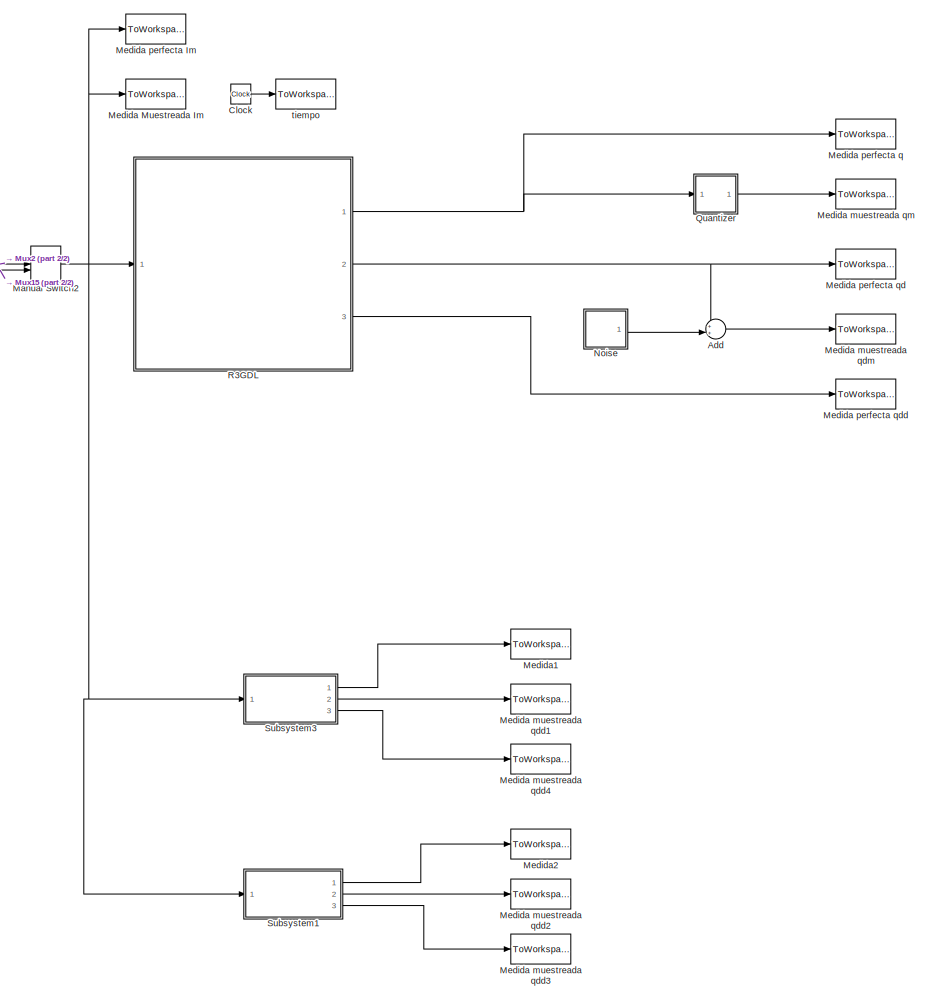
[diagram: root canvas - part 1/2, right side, full height]
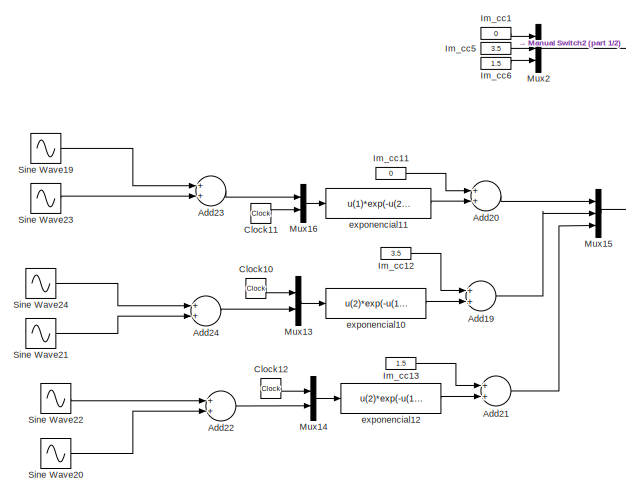
[diagram: root canvas - part 2/2, top left region]
MODEL slx_bdbe57c307d7
KIND model
CONFIG AbsTol = auto
CONFIG EnableMultiTasking = off
CONFIG FixedStep = 0.001
CONFIG MaxStep = auto
CONFIG MinStep = auto
CONFIG RelTol = 1e-3
CONFIG SampleTimeConstraint = Unconstrained
CONFIG Solver = VariableStepAuto
CONFIG SolverName = VariableStepAuto
CONFIG StartTime = 0.0
CONFIG StopTime = fin
BLOCK [Sum] Add
  IconShape = round
  InputSameDT = off
  Inputs = ++|
  OutDataTypeStr = Inherit: Inherit via internal rule
  Ports = [2, 1]
  SaturateOnIntegerOverflow = off
BLOCK [Sum] Add19
  InputSameDT = off
  OutDataTypeStr = Inherit: Inherit via internal rule
  Ports = [2, 1]
  SaturateOnIntegerOverflow = off
BLOCK [Sum] Add20
  InputSameDT = off
  OutDataTypeStr = Inherit: Inherit via internal rule
  Ports = [2, 1]
  SaturateOnIntegerOverflow = off
BLOCK [Sum] Add21
  InputSameDT = off
  OutDataTypeStr = Inherit: Inherit via internal rule
  Ports = [2, 1]
  SaturateOnIntegerOverflow = off
BLOCK [Sum] Add22
  InputSameDT = off
  OutDataTypeStr = Inherit: Inherit via internal rule
  Ports = [2, 1]
  SaturateOnIntegerOverflow = off
BLOCK [Sum] Add23
  InputSameDT = off
  OutDataTypeStr = Inherit: Inherit via internal rule
  Ports = [2, 1]
  SaturateOnIntegerOverflow = off
BLOCK [Sum] Add24
  InputSameDT = off
  OutDataTypeStr = Inherit: Inherit via internal rule
  Ports = [2, 1]
  SaturateOnIntegerOverflow = off
BLOCK [Clock] Clock
BLOCK [Clock] Clock10
BLOCK [Clock] Clock11
BLOCK [Clock] Clock12
BLOCK [Constant] Im_cc1
  Value = 0
BLOCK [Constant] Im_cc11
  Value = 0
BLOCK [Constant] Im_cc12
  Value = 3.5
BLOCK [Constant] Im_cc13
  Value = 1.5
BLOCK [Constant] Im_cc5
  Value = 3.5
BLOCK [Constant] Im_cc6
  Value = 1.5
BLOCK [ManualSwitch] Manual Switch2
  CurrentSetting = 0
BLOCK [ToWorkspace] Medida Muestreada Im
  FixptAsFi = on
  MaxDataPoints = inf
  Ports = [1]
  SampleTime = Ts
  Save2DSignal = 3-D array (concatenate along third dimension)
  VariableName = Ireal
BLOCK [ToWorkspace] Medida muestreada qdd1
  FixptAsFi = on
  MaxDataPoints = inf
  Ports = [1]
  SampleTime = Ts
  Save2DSignal = 3-D array (concatenate along third dimension)
  VariableName = qdi
BLOCK [ToWorkspace] Medida muestreada qdd2
  FixptAsFi = on
  MaxDataPoints = inf
  Ports = [1]
  SampleTime = Ts
  Save2DSignal = 3-D array (concatenate along third dimension)
  VariableName = qdr
BLOCK [ToWorkspace] Medida muestreada qdd3
  FixptAsFi = on
  MaxDataPoints = inf
  Ports = [1]
  SampleTime = Ts
  Save2DSignal = 3-D array (concatenate along third dimension)
  VariableName = qddr
BLOCK [ToWorkspace] Medida muestreada qdd4
  FixptAsFi = on
  MaxDataPoints = inf
  Ports = [1]
  SampleTime = Ts
  Save2DSignal = 3-D array (concatenate along third dimension)
  VariableName = qddi
BLOCK [ToWorkspace] Medida muestreada qdm
  FixptAsFi = on
  MaxDataPoints = inf
  Ports = [1]
  SampleTime = Ts
  Save2DSignal = 3-D array (concatenate along third dimension)
  VariableName = qdreal
BLOCK [ToWorkspace] Medida muestreada qm
  FixptAsFi = on
  MaxDataPoints = inf
  Ports = [1]
  SampleTime = Ts
  Save2DSignal = 3-D array (concatenate along third dimension)
  VariableName = qreal
BLOCK [ToWorkspace] Medida perfecta Im
  MaxDataPoints = inf
  Ports = [1]
  SampleTime = -1
  VariableName = Im
BLOCK [ToWorkspace] Medida perfecta q
  MaxDataPoints = inf
  Ports = [1]
  SampleTime = -1
  VariableName = q
BLOCK [ToWorkspace] Medida perfecta qd
  MaxDataPoints = inf
  Ports = [1]
  SampleTime = -1
  VariableName = qd
BLOCK [ToWorkspace] Medida perfecta qdd
  MaxDataPoints = inf
  Ports = [1]
  SampleTime = -1
  VariableName = qdd
BLOCK [ToWorkspace] Medida1
  FixptAsFi = on
  MaxDataPoints = inf
  Ports = [1]
  SampleTime = Ts
  Save2DSignal = 3-D array (concatenate along third dimension)
  VariableName = qi
BLOCK [ToWorkspace] Medida2
  FixptAsFi = on
  MaxDataPoints = inf
  Ports = [1]
  SampleTime = Ts
  Save2DSignal = 3-D array (concatenate along third dimension)
  VariableName = qr
BLOCK [Mux] Mux13
  DisplayOption = bar
  Inputs = 2
  Ports = [2, 1]
BLOCK [Mux] Mux14
  DisplayOption = bar
  Inputs = 2
  Ports = [2, 1]
BLOCK [Mux] Mux15
  DisplayOption = bar
  Inputs = 3
  Ports = [3, 1]
BLOCK [Mux] Mux16
  DisplayOption = bar
  Inputs = 2
  Ports = [2, 1]
BLOCK [Mux] Mux2
  DisplayOption = bar
  Inputs = 3
  Ports = [3, 1]
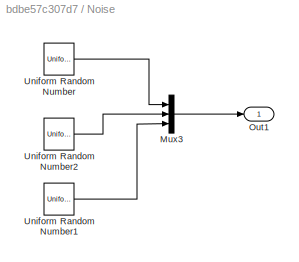
BLOCK [SubSystem] Noise 
  Ports = [0, 1]
  RequestExecContextInheritance = off
BLOCK [Mux] Noise /Mux3
  DisplayOption = bar
  Inputs = 3
  Ports = [3, 1]
BLOCK [Outport] Noise /Out1
  IconDisplay = Port number
BLOCK [UniformRandomNumber] Noise /Uniform Random Number
  Maximum = (1500*2*pi/60)*(noise/R1)
  Minimum = -(1500*2*pi/60)*(noise/R1)
  SampleTime = Ts*2
BLOCK [UniformRandomNumber] Noise /Uniform Random Number1
  Maximum = (1500*2*pi/60)*(noise/R3)
  Minimum = -(1500*2*pi/60)*(noise/R3)
  SampleTime = Ts*2
BLOCK [UniformRandomNumber] Noise /Uniform Random Number2
  Maximum = (1500*2*pi/60)*(noise/R2)
  Minimum = -(1500*2*pi/60)*(noise/R2)
  SampleTime = Ts*2
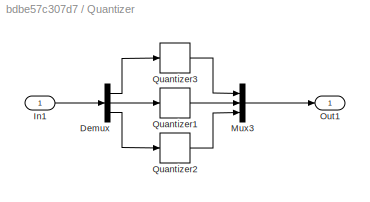
BLOCK [SubSystem] Quantizer 
  Ports = [1, 1]
  RequestExecContextInheritance = off
BLOCK [Demux] Quantizer /Demux
  DisplayOption = bar
  Outputs = 3
  Ports = [1, 3]
BLOCK [Inport] Quantizer /In1
  IconDisplay = Port number
BLOCK [Mux] Quantizer /Mux3
  DisplayOption = bar
  Inputs = 3
  Ports = [3, 1]
BLOCK [Outport] Quantizer /Out1
  IconDisplay = Port number
BLOCK [Quantizer] Quantizer /Quantizer1
  QuantizationInterval = 2*pi/1024/30
BLOCK [Quantizer] Quantizer /Quantizer2
  QuantizationInterval = 2*pi/1024/15
BLOCK [Quantizer] Quantizer /Quantizer3
  QuantizationInterval = 2*pi/1024/50
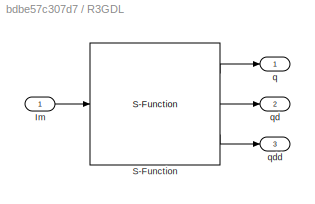
BLOCK [SubSystem] R3GDL
  Ports = [1, 3]
  RequestExecContextInheritance = off
BLOCK [Inport] R3GDL/Im
  IconDisplay = Port number
BLOCK [S-Function] R3GDL/S-Function
  EnableBusSupport = off
  FunctionName = R3GDL_RRR
  Parameters = [q1_ini; q2_ini; q3_ini]; [Bl_q1; Bl_q2; Bl_q3]; AccionamientoDirecto; NGrupo
  Ports = [1, 3]
  SFcnIsStateOwnerBlock = off
  SFunctionDeploymentMode = off
BLOCK [Outport] R3GDL/q
  IconDisplay = Port number
BLOCK [Outport] R3GDL/qd
  IconDisplay = Port number
  Port = 2
BLOCK [Outport] R3GDL/qdd
  IconDisplay = Port number
  Port = 3
BLOCK [Sin] Sine Wave19
  Amplitude = Aa1
  Frequency = wa1
  Ports = [0, 1]
  SampleTime = 0
BLOCK [Sin] Sine Wave20
  Amplitude = Ab3
  Frequency = wb3
  Ports = [0, 1]
  SampleTime = 0
BLOCK [Sin] Sine Wave21
  Amplitude = Ab2
  Frequency = wb2
  Ports = [0, 1]
  SampleTime = 0
BLOCK [Sin] Sine Wave22
  Amplitude = Aa3
  Frequency = wa3
  Ports = [0, 1]
  SampleTime = 0
BLOCK [Sin] Sine Wave23
  Amplitude = Ab1
  Frequency = wb1
  Ports = [0, 1]
  SampleTime = 0
BLOCK [Sin] Sine Wave24
  Amplitude = Aa2
  Frequency = wa2
  Ports = [0, 1]
  SampleTime = 0
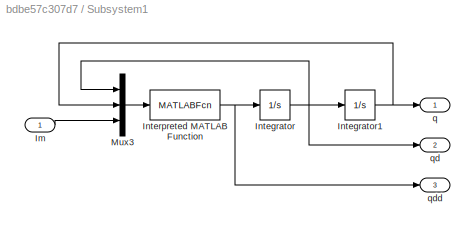
BLOCK [SubSystem] Subsystem1
  Ports = [1, 3]
  RequestExecContextInheritance = off
BLOCK [Inport] Subsystem1/Im
  IconDisplay = Port number
BLOCK [Integrator] Subsystem1/Integrator
  Ports = [1, 1]
BLOCK [Integrator] Subsystem1/Integrator1
  InitialCondition = [0 q2ini q3ini]
  Ports = [1, 1]
BLOCK [MATLABFcn] Subsystem1/Interpreted MATLAB Function
  MATLABFcn = modeloReal(u(1:6),u(7:9))
  OutputDimensions = 3
  Ports = [1, 1]
BLOCK [Mux] Subsystem1/Mux3
  DisplayOption = bar
  Inputs = 3
  Ports = [3, 1]
BLOCK [Outport] Subsystem1/q
  IconDisplay = Port number
BLOCK [Outport] Subsystem1/qd
  IconDisplay = Port number
  Port = 2
BLOCK [Outport] Subsystem1/qdd
  IconDisplay = Port number
  Port = 3
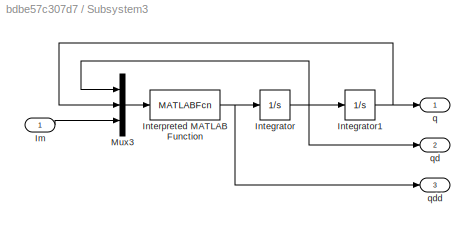
BLOCK [SubSystem] Subsystem3
  Ports = [1, 3]
  RequestExecContextInheritance = off
BLOCK [Inport] Subsystem3/Im
  IconDisplay = Port number
BLOCK [Integrator] Subsystem3/Integrator
  Ports = [1, 1]
BLOCK [Integrator] Subsystem3/Integrator1
  InitialCondition = [0 q2ini q3ini]
  Ports = [1, 1]
BLOCK [MATLABFcn] Subsystem3/Interpreted MATLAB Function
  MATLABFcn = modeloIdeal(u(1:6),u(7:9))
  OutputDimensions = 3
  Ports = [1, 1]
BLOCK [Mux] Subsystem3/Mux3
  DisplayOption = bar
  Inputs = 3
  Ports = [3, 1]
BLOCK [Outport] Subsystem3/q
  IconDisplay = Port number
BLOCK [Outport] Subsystem3/qd
  IconDisplay = Port number
  Port = 2
BLOCK [Outport] Subsystem3/qdd
  IconDisplay = Port number
  Port = 3
BLOCK [Fcn] exponencial10
  Expr = u(2)*exp(-u(1)/Tau2)
BLOCK [Fcn] exponencial11
  Expr = u(1)*exp(-u(2)/Tau1)
BLOCK [Fcn] exponencial12
  Expr = u(2)*exp(-u(1)/Tau3)
BLOCK [ToWorkspace] tiempo
  MaxDataPoints = inf
  Ports = [1]
  SampleTime = Ts
  VariableName = t
LINE Add19:1 -> Mux15:2
LINE Add20:1 -> Mux15:1
LINE Add21:1 -> Mux15:3
LINE Add22:1 -> Mux14:2
LINE Add23:1 -> Mux16:1
LINE Add24:1 -> Mux13:2
LINE Add:1 -> Medida muestreada qdm:1
LINE Clock10:1 -> Mux13:1
LINE Clock11:1 -> Mux16:2
LINE Clock12:1 -> Mux14:1
LINE Clock:1 -> tiempo:1
LINE Im_cc11:1 -> Add20:1
LINE Im_cc12:1 -> Add19:1
LINE Im_cc13:1 -> Add21:1
LINE Im_cc1:1 -> Mux2:1
LINE Im_cc5:1 -> Mux2:2
LINE Im_cc6:1 -> Mux2:3
NET Manual Switch2:1 -> Medida Muestreada Im:1, Medida perfecta Im:1, R3GDL:1, Subsystem1:1, Subsystem3:1
LINE Mux13:1 -> exponencial10:1
LINE Mux14:1 -> exponencial12:1
LINE Mux15:1 -> Manual Switch2:2
LINE Mux16:1 -> exponencial11:1
LINE Mux2:1 -> Manual Switch2:1
LINE Noise /Mux3:1 -> Noise /Out1:1
LINE Noise /Uniform Random Number1:1 -> Noise /Mux3:3
LINE Noise /Uniform Random Number2:1 -> Noise /Mux3:2
LINE Noise /Uniform Random Number:1 -> Noise /Mux3:1
LINE Noise :1 -> Add:2
LINE Quantizer /Demux:1 -> Quantizer /Quantizer3:1
LINE Quantizer /Demux:2 -> Quantizer /Quantizer1:1
LINE Quantizer /Demux:3 -> Quantizer /Quantizer2:1
LINE Quantizer /In1:1 -> Quantizer /Demux:1
LINE Quantizer /Mux3:1 -> Quantizer /Out1:1
LINE Quantizer /Quantizer1:1 -> Quantizer /Mux3:2
LINE Quantizer /Quantizer2:1 -> Quantizer /Mux3:3
LINE Quantizer /Quantizer3:1 -> Quantizer /Mux3:1
LINE Quantizer :1 -> Medida muestreada qm:1
LINE R3GDL/Im:1 -> R3GDL/S-Function:1
LINE R3GDL/S-Function:1 -> R3GDL/q:1
LINE R3GDL/S-Function:2 -> R3GDL/qd:1
LINE R3GDL/S-Function:3 -> R3GDL/qdd:1
NET R3GDL:1 -> Medida perfecta q:1, Quantizer :1
NET R3GDL:2 -> Add:1, Medida perfecta qd:1
LINE R3GDL:3 -> Medida perfecta qdd:1
LINE Sine Wave19:1 -> Add23:1
LINE Sine Wave20:1 -> Add22:2
LINE Sine Wave21:1 -> Add24:2
LINE Sine Wave22:1 -> Add22:1
LINE Sine Wave23:1 -> Add23:2
LINE Sine Wave24:1 -> Add24:1
LINE Subsystem1/Im:1 -> Subsystem1/Mux3:3
NET Subsystem1/Integrator1:1 -> Subsystem1/Mux3:2, Subsystem1/q:1
NET Subsystem1/Integrator:1 -> Subsystem1/Integrator1:1, Subsystem1/Mux3:1, Subsystem1/qd:1
NET Subsystem1/Interpreted MATLAB Function:1 -> Subsystem1/Integrator:1, Subsystem1/qdd:1
LINE Subsystem1/Mux3:1 -> Subsystem1/Interpreted MATLAB Function:1
LINE Subsystem1:1 -> Medida2:1
LINE Subsystem1:2 -> Medida muestreada qdd2:1
LINE Subsystem1:3 -> Medida muestreada qdd3:1
LINE Subsystem3/Im:1 -> Subsystem3/Mux3:3
NET Subsystem3/Integrator1:1 -> Subsystem3/Mux3:2, Subsystem3/q:1
NET Subsystem3/Integrator:1 -> Subsystem3/Integrator1:1, Subsystem3/Mux3:1, Subsystem3/qd:1
NET Subsystem3/Interpreted MATLAB Function:1 -> Subsystem3/Integrator:1, Subsystem3/qdd:1
LINE Subsystem3/Mux3:1 -> Subsystem3/Interpreted MATLAB Function:1
LINE Subsystem3:1 -> Medida1:1
LINE Subsystem3:2 -> Medida muestreada qdd1:1
LINE Subsystem3:3 -> Medida muestreada qdd4:1
LINE exponencial10:1 -> Add19:2
LINE exponencial11:1 -> Add20:2
LINE exponencial12:1 -> Add21:2
note: NET lines group one-source signal fan-out (src -> all destinations, sorted); 1:1 wires keep LINE
